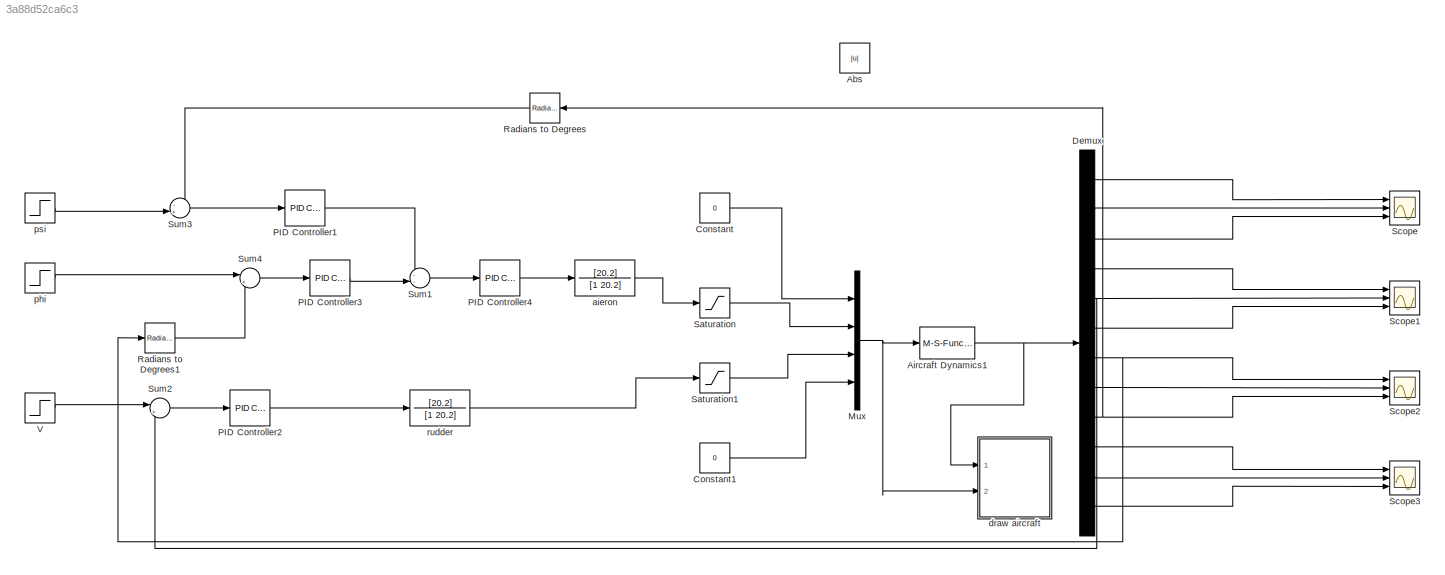
MODEL slx_3a88d52ca6c3
KIND model
CONFIG AbsTol = auto
CONFIG EnableMultiTasking = off
CONFIG FixedStep = auto
CONFIG MaxStep = auto
CONFIG MinStep = auto
CONFIG RelTol = 1e-3
CONFIG SampleTimeConstraint = Unconstrained
CONFIG SolverName = VariableStepAuto
CONFIG StartTime = 0.0
CONFIG StopTime = 1200
BLOCK [Abs] Abs
  SaturateOnIntegerOverflow = off
BLOCK [M-S-Function] Aircraft Dynamics1
  FunctionName = aircraft_dynamics1216_PROJECT
  Parameters = P
  Ports = [1, 1]
BLOCK [Constant] Constant
  Value = 0
BLOCK [Constant] Constant1
  Value = 0
BLOCK [Demux] Demux
  Outputs = 12
  Ports = [1, 12]
BLOCK [Mux] Mux
  DisplayOption = bar
  Ports = [4, 1]
BLOCK [Reference] PID Controller1  REF=slpidlib/PID Controller
  Ports = [1, 1]
  SourceBlock = slpidlib/PID Controller
  SourceProductBaseCode = SL
  SourceType = PID 1dof
BLOCK [Reference] PID Controller2  REF=slpidlib/PID Controller
  Ports = [1, 1]
  SourceBlock = slpidlib/PID Controller
  SourceProductBaseCode = SL
  SourceType = PID 1dof
BLOCK [Reference] PID Controller3  REF=slpidlib/PID Controller
  Ports = [1, 1]
  SourceBlock = slpidlib/PID Controller
  SourceProductBaseCode = SL
  SourceType = PID 1dof
BLOCK [Reference] PID Controller4  REF=slpidlib/PID Controller
  Ports = [1, 1]
  SourceBlock = slpidlib/PID Controller
  SourceProductBaseCode = SL
  SourceType = PID 1dof
BLOCK [Reference] Radians to Degrees  REF=simulink_extras/Transformations/Radians
to Degrees
  Ports = [1, 1]
  SourceBlock = simulink_extras/Transformations/Radians\nto Degrees
  SourceProductBaseCode = SL
  SourceType = RadiansToDegrees
BLOCK [Reference] Radians to Degrees1  REF=simulink_extras/Transformations/Radians
to Degrees
  Ports = [1, 1]
  SourceBlock = simulink_extras/Transformations/Radians\nto Degrees
  SourceProductBaseCode = SL
  SourceType = RadiansToDegrees
BLOCK [Saturate] Saturation
  LowerLimit = -50
  UpperLimit = 50
BLOCK [Saturate] Saturation1
  LowerLimit = -50
  UpperLimit = 50
BLOCK [Scope] Scope
  Floating = off
  NumInputPorts = 3
  Ports = [3]
  ScopeSpecificationString = Simulink.scopes.TimeScopeBlockCfg('CurrentConfiguration', extmgr.ConfigurationSet(extmgr.Configuration('Core','General UI',true),extmgr.Configuration('Core','Source UI',true),extmgr.Configuration('Sources','WiredSimulink',true,'DataLoggingVariableName','ScopeData1'),extmgr.Configuration('Visuals','Time Domain',true,'SerializedDisplays',{struct('MinYLimReal','-2284.31646','MaxYLimReal','558.84814',...<+1524ch>
BLOCK [Scope] Scope1
  Floating = off
  NumInputPorts = 3
  Ports = [3]
  ScopeSpecificationString = Simulink.scopes.TimeScopeBlockCfg('CurrentConfiguration', extmgr.ConfigurationSet(extmgr.Configuration('Core','General UI',true),extmgr.Configuration('Core','Source UI',true),extmgr.Configuration('Sources','WiredSimulink',true,'DataLoggingVariableName','ScopeData2'),extmgr.Configuration('Visuals','Time Domain',true,'SerializedDisplays',{struct('MinYLimReal','-22683.78135','MaxYLimReal','71703.1311...<+1528ch>
BLOCK [Scope] Scope2
  Floating = off
  NumInputPorts = 3
  Ports = [3]
  ScopeSpecificationString = Simulink.scopes.TimeScopeBlockCfg('CurrentConfiguration', extmgr.ConfigurationSet(extmgr.Configuration('Core','General UI',true),extmgr.Configuration('Core','Source UI',true),extmgr.Configuration('Sources','WiredSimulink',true,'DataLoggingVariableName','ScopeData3'),extmgr.Configuration('Visuals','Time Domain',true,'SerializedDisplays',{struct('MinYLimReal','-3427.74908','MaxYLimReal','380.86133',...<+1534ch>
BLOCK [Scope] Scope3
  Floating = off
  NumInputPorts = 3
  Ports = [3]
  ScopeSpecificationString = Simulink.scopes.TimeScopeBlockCfg('CurrentConfiguration', extmgr.ConfigurationSet(extmgr.Configuration('Core','General UI',true),extmgr.Configuration('Core','Source UI',true),extmgr.Configuration('Sources','WiredSimulink',true),extmgr.Configuration('Visuals','Time Domain',true,'SerializedDisplays',{struct('MinYLimReal','-972.89697','MaxYLimReal','2770.1101','YLabelReal','','MinYLimMag',' 0.00000',...<+1473ch>
BLOCK [Sum] Sum1
  Inputs = --|
  Ports = [2, 1]
BLOCK [Sum] Sum2
  Inputs = |+-
  Ports = [2, 1]
BLOCK [Sum] Sum3
  Inputs = -+|
  Ports = [2, 1]
BLOCK [Sum] Sum4
  Inputs = |+-
  Ports = [2, 1]
BLOCK [Step] V 
  After = 0
  SampleTime = 0
BLOCK [TransferFcn] aieron 
  Denominator = [1 20.2]
  Numerator = [20.2]
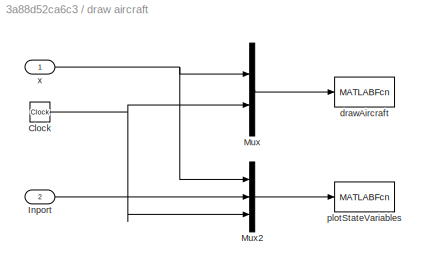
BLOCK [SubSystem] draw aircraft
  Ports = [2]
  RequestExecContextInheritance = off
BLOCK [Clock] draw aircraft/Clock
BLOCK [Inport] draw aircraft/Inport
  Port = 2
BLOCK [Mux] draw aircraft/Mux
  DisplayOption = bar
  Inputs = 2
  Ports = [2, 1]
BLOCK [Mux] draw aircraft/Mux2
  DisplayOption = bar
  Inputs = 3
  Ports = [3, 1]
BLOCK [MATLABFcn] draw aircraft/drawAircraft
  MATLABFcn = drawAircraft(u)
  OutputDimensions = 0
  Ports = [1]
  SampleTime = 0.1
BLOCK [MATLABFcn] draw aircraft/plotStateVariables
  MATLABFcn = plotmavstatevariables(u)
  OutputDimensions = 0
  Ports = [1]
  SampleTime = 0.1
BLOCK [Inport] draw aircraft/x
BLOCK [Step] phi 
  After = 17.5
  SampleTime = 0
BLOCK [Step] psi
  After = 180
  SampleTime = 0
BLOCK [TransferFcn] rudder 
  Denominator = [1 20.2]
  Numerator = [20.2]
NET Aircraft Dynamics1:1 -> Demux:1, draw aircraft:1
LINE Constant1:1 -> Mux:4
LINE Constant:1 -> Mux:1
LINE Demux:1 -> Scope:1
LINE Demux:10 -> Scope3:1
LINE Demux:11 -> Scope3:2
LINE Demux:12 -> Scope3:3
LINE Demux:2 -> Scope:2
LINE Demux:3 -> Scope:3
LINE Demux:4 -> Scope1:1
NET Demux:5 -> Scope1:2, Sum2:2
LINE Demux:6 -> Scope1:3
NET Demux:7 -> Radians to Degrees1:1, Scope2:1
LINE Demux:8 -> Scope2:2
NET Demux:9 -> Radians to Degrees:1, Scope2:3
NET Mux:1 -> Aircraft Dynamics1:1, draw aircraft:2
LINE PID Controller1:1 -> Sum1:1
LINE PID Controller2:1 -> rudder :1
LINE PID Controller3:1 -> Sum1:2
LINE PID Controller4:1 -> aieron :1
LINE Radians to Degrees1:1 -> Sum4:2
LINE Radians to Degrees:1 -> Sum3:1
LINE Saturation1:1 -> Mux:3
LINE Saturation:1 -> Mux:2
LINE Sum1:1 -> PID Controller4:1
LINE Sum2:1 -> PID Controller2:1
LINE Sum3:1 -> PID Controller1:1
LINE Sum4:1 -> PID Controller3:1
LINE V :1 -> Sum2:1
LINE aieron :1 -> Saturation:1
NET draw aircraft/Clock:1 -> draw aircraft/Mux2:3, draw aircraft/Mux:2
LINE draw aircraft/Inport:1 -> draw aircraft/Mux2:2
LINE draw aircraft/Mux2:1 -> draw aircraft/plotStateVariables:1
LINE draw aircraft/Mux:1 -> draw aircraft/drawAircraft:1
NET draw aircraft/x:1 -> draw aircraft/Mux2:1, draw aircraft/Mux:1
LINE phi :1 -> Sum4:1
LINE psi:1 -> Sum3:2
LINE rudder :1 -> Saturation1:1
note: NET lines group one-source signal fan-out (src -> all destinations, sorted); 1:1 wires keep LINE
